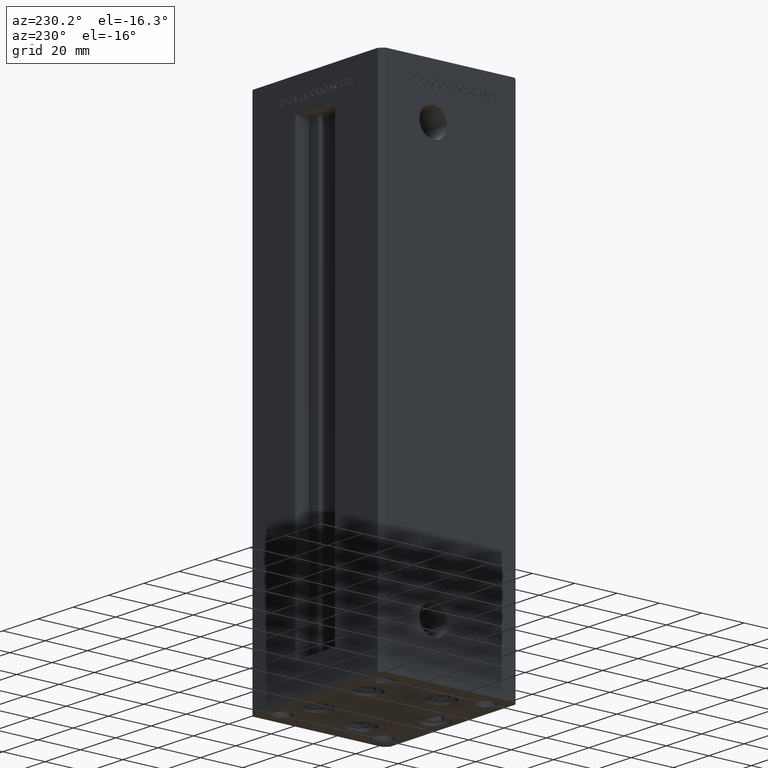
[diagram: clean part render]
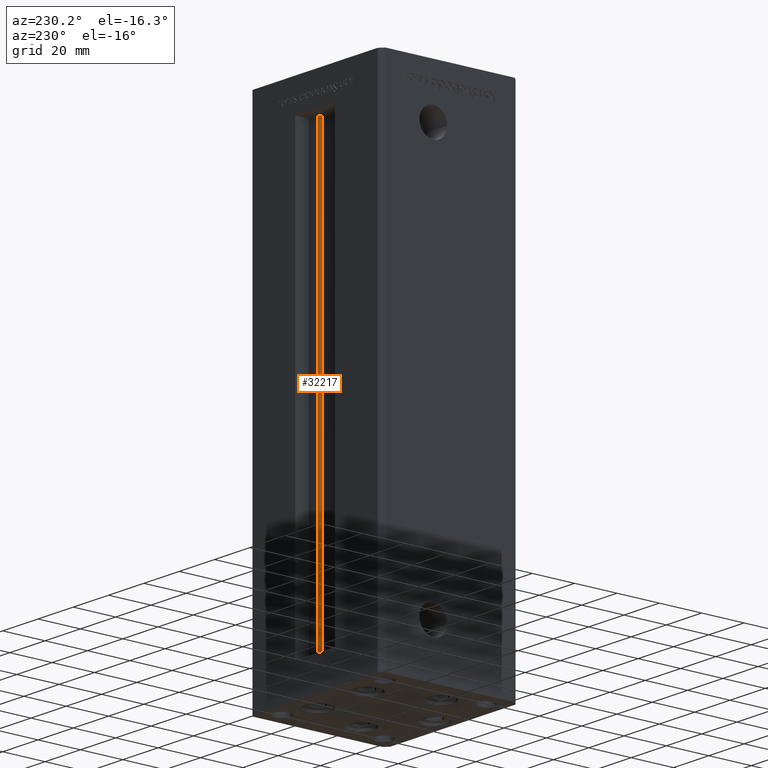
[diagram: same view with one face highlighted and labeled with its STEP entity id]
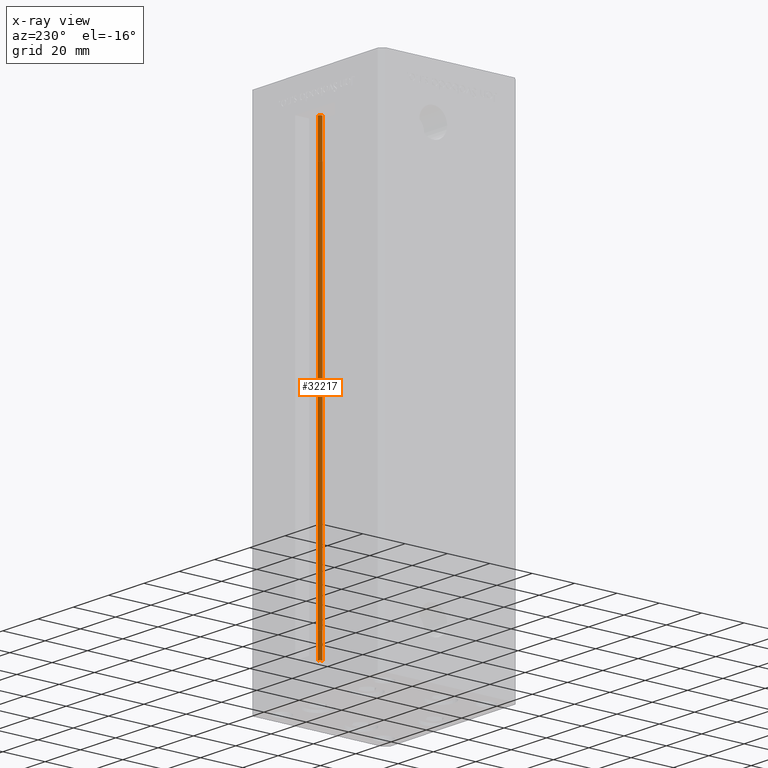
[diagram: x-ray of the same camera — body ghosted, the highlighted face saturated]
A machine part, auxiliary view. The second image highlights one B-rep face of the part: STEP entity #32217.
The next image is the same camera in x-ray: the body ghosted, the highlighted face saturated — about 0% of this face is hidden behind the body in this view.
In plain terms, the highlighted cylindrical surface (edge-blend (fillet) strip) has radius 0.9333 mm, axis along (0, 0, 1).
Its self-contained STEP definition (entity closure, byte-faithful):
#1176 = VERTEX_POINT ( 'NONE', #15331 ) ;
#1510 = EDGE_CURVE ( 'NONE', #12737, #5541, #10043, .T. ) ;
#3894 = LINE ( 'NONE', #43744, #5219 ) ;
#3979 = FACE_OUTER_BOUND ( 'NONE', #27556, .T. ) ;
#5219 = VECTOR ( 'NONE', #7081, 1000.000000000000000 ) ;
#5534 = AXIS2_PLACEMENT_3D ( 'NONE', #26508, #47093, #38382 ) ;
#5541 = VERTEX_POINT ( 'NONE', #43070 ) ;
#7073 = ORIENTED_EDGE ( 'NONE', *, *, #41475, .F. ) ;
#7081 = DIRECTION ( 'NONE',  ( -0.000000000000000000, -0.000000000000000000, 1.000000000000000000 ) ) ;
#7928 = CARTESIAN_POINT ( 'NONE',  ( 6.183333333334001480, 25.06666666666599141, 0.000000000000000000 ) ) ;
#8108 = ORIENTED_EDGE ( 'NONE', *, *, #1510, .T. ) ;
#8980 = CARTESIAN_POINT ( 'NONE',  ( 5.375042956467948052, 24.59999999999899245, 206.0000000000000000 ) ) ;
#9553 = EDGE_CURVE ( 'NONE', #1176, #5541, #3894, .T. ) ;
#9949 = LINE ( 'NONE', #37384, #47346 ) ;
#10043 = CIRCLE ( 'NONE', #51304, 0.9333333333340008142 ) ;
#10532 = CARTESIAN_POINT ( 'NONE',  ( 6.183333333334001480, 25.06666666666599141, 206.0000000000000000 ) ) ;
#12737 = VERTEX_POINT ( 'NONE', #8980 ) ;
#13648 = DIRECTION ( 'NONE',  ( -0.000000000000000000, -0.000000000000000000, 1.000000000000000000 ) ) ;
#14097 = ORIENTED_EDGE ( 'NONE', *, *, #15733, .T. ) ;
#15331 = CARTESIAN_POINT ( 'NONE',  ( 6.183333333334001480, 25.99999999999999289, 0.000000000000000000 ) ) ;
#15733 = EDGE_CURVE ( 'NONE', #31157, #12737, #9949, .T. ) ;
#16893 = DIRECTION ( 'NONE',  ( -0.000000000000000000, -0.000000000000000000, 1.000000000000000000 ) ) ;
#17366 = AXIS2_PLACEMENT_3D ( 'NONE', #7928, #16893, #40904 ) ;
#26508 = CARTESIAN_POINT ( 'NONE',  ( 6.183333333334001480, 25.06666666666599141, 0.000000000000000000 ) ) ;
#26621 = DIRECTION ( 'NONE',  ( 0.000000000000000000, 0.000000000000000000, -1.000000000000000000 ) ) ;
#27556 = EDGE_LOOP ( 'NONE', ( #36107, #7073, #14097, #8108 ) ) ;
#29076 = CARTESIAN_POINT ( 'NONE',  ( 5.375042956467947164, 24.59999999999899245, 0.000000000000000000 ) ) ;
#31157 = VERTEX_POINT ( 'NONE', #29076 ) ;
#32217 = ADVANCED_FACE ( 'NONE', ( #3979 ), #39855, .T. ) ;
#33311 = CIRCLE ( 'NONE', #5534, 0.9333333333340008142 ) ;
#36107 = ORIENTED_EDGE ( 'NONE', *, *, #9553, .F. ) ;
#37384 = CARTESIAN_POINT ( 'NONE',  ( 5.375042956467947164, 24.59999999999899245, 0.000000000000000000 ) ) ;
#38382 = DIRECTION ( 'NONE',  ( 1.000000000000000000, 0.000000000000000000, 0.000000000000000000 ) ) ;
#39855 = CYLINDRICAL_SURFACE ( 'NONE', #17366, 0.9333333333340008142 ) ;
#40904 = DIRECTION ( 'NONE',  ( 1.000000000000000000, 0.000000000000000000, 0.000000000000000000 ) ) ;
#41475 = EDGE_CURVE ( 'NONE', #31157, #1176, #33311, .T. ) ;
#43070 = CARTESIAN_POINT ( 'NONE',  ( 6.183333333334001480, 25.99999999999999289, 206.0000000000000000 ) ) ;
#43744 = CARTESIAN_POINT ( 'NONE',  ( 6.183333333334001480, 25.99999999999999289, 0.000000000000000000 ) ) ;
#47093 = DIRECTION ( 'NONE',  ( -0.000000000000000000, -0.000000000000000000, -1.000000000000000000 ) ) ;
#47346 = VECTOR ( 'NONE', #13648, 1000.000000000000000 ) ;
#50883 = DIRECTION ( 'NONE',  ( 1.000000000000000000, 0.000000000000000000, 0.000000000000000000 ) ) ;
#51304 = AXIS2_PLACEMENT_3D ( 'NONE', #10532, #26621, #50883 ) ;